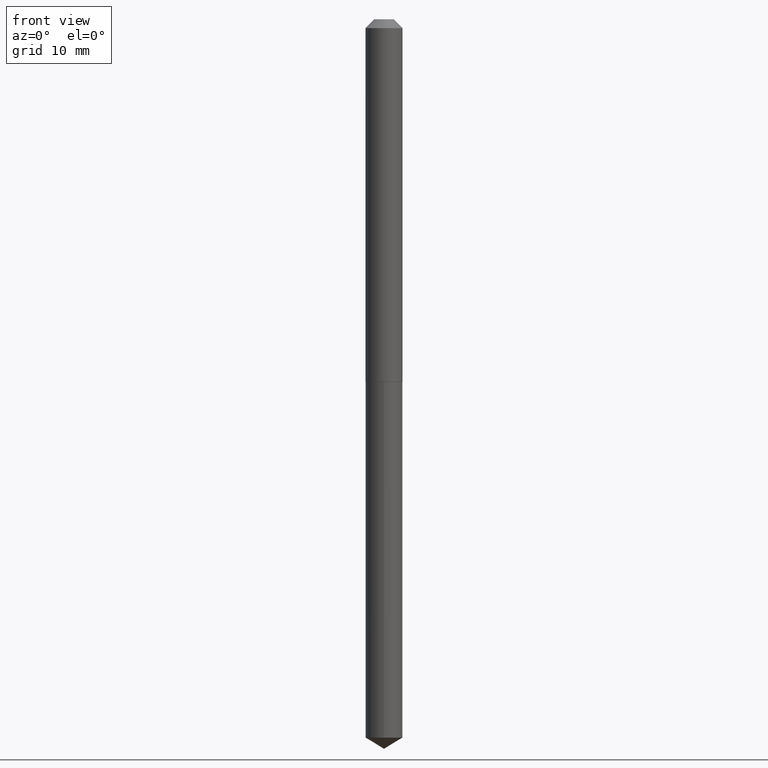
[diagram: clean part render]
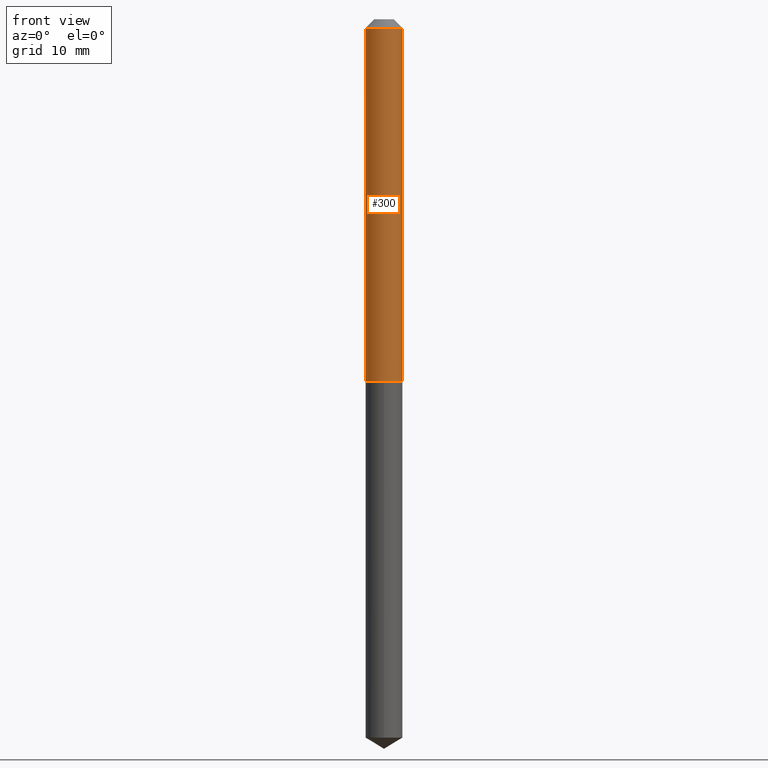
[diagram: same view with one face highlighted and labeled with its STEP entity id]
A machine part, front view. The second image highlights one B-rep face of the part: STEP entity #300.
In plain terms, the highlighted cylindrical surface (edge-blend (fillet) strip) has radius 1.6497 mm, axis along (-0, 0, 1).
Its self-contained STEP definition (entity closure, byte-faithful):
#10 = LINE ( 'NONE', #159, #65 ) ;
#13 = CARTESIAN_POINT ( 'NONE',  ( 0.000000000000000000, 0.000000000000000000, 0.000000000000000000 ) ) ;
#17 = CARTESIAN_POINT ( 'NONE',  ( 7.642090019328601786E-31, -1.091087918388490144E-16, -0.03125000000000020123 ) ) ;
#19 = EDGE_LOOP ( 'NONE', ( #212, #88, #215, #326 ) ) ;
#41 = DIRECTION ( 'NONE',  ( 1.000000000000000000, -6.982962677686265922E-15, 4.876176775795935793E-29 ) ) ;
#53 = VERTEX_POINT ( 'NONE', #64 ) ;
#64 = CARTESIAN_POINT ( 'NONE',  ( 0.06495000000000014651, -4.891914503853131360E-15, -1.271200000000000108 ) ) ;
#65 = VECTOR ( 'NONE', #104, 39.37007874015748143 ) ;
#66 = CARTESIAN_POINT ( 'NONE',  ( -0.06494999999999999385, -1.812242428011941536E-15, -0.03125000000000020123 ) ) ;
#74 = VERTEX_POINT ( 'NONE', #66 ) ;
#88 = ORIENTED_EDGE ( 'NONE', *, *, #207, .T. ) ;
#89 = EDGE_CURVE ( 'NONE', #182, #74, #10, .T. ) ;
#104 = DIRECTION ( 'NONE',  ( -2.445468806185136877E-29, 3.491481338843145188E-15, 1.000000000000000000 ) ) ;
#108 = FACE_OUTER_BOUND ( 'NONE', #19, .T. ) ;
#110 = CIRCLE ( 'NONE', #361, 0.06495000000000014651 ) ;
#111 = CYLINDRICAL_SURFACE ( 'NONE', #271, 0.06495000000000007712 ) ;
#157 = EDGE_CURVE ( 'NONE', #53, #302, #163, .T. ) ;
#159 = CARTESIAN_POINT ( 'NONE',  ( -0.06495000000000007712, 4.614975068761856187E-16, -3.194848341120565109E-30 ) ) ;
#163 = LINE ( 'NONE', #164, #354 ) ;
#164 = CARTESIAN_POINT ( 'NONE',  ( 0.06495000000000007712, -4.535434259157234891E-16, 3.167076815879463918E-30 ) ) ;
#168 = CARTESIAN_POINT ( 'NONE',  ( -0.06495000000000014651, -3.976873571061221069E-15, -1.271200000000000108 ) ) ;
#169 = DIRECTION ( 'NONE',  ( 1.000000000000000000, -6.982962677686267499E-15, 0.000000000000000000 ) ) ;
#182 = VERTEX_POINT ( 'NONE', #168 ) ;
#207 = EDGE_CURVE ( 'NONE', #182, #53, #110, .T. ) ;
#212 = ORIENTED_EDGE ( 'NONE', *, *, #89, .F. ) ;
#215 = ORIENTED_EDGE ( 'NONE', *, *, #157, .T. ) ;
#237 = CARTESIAN_POINT ( 'NONE',  ( 0.06494999999999999385, -5.626522177545718995E-16, -0.03125000000000020123 ) ) ;
#264 = EDGE_CURVE ( 'NONE', #74, #302, #378, .T. ) ;
#271 = AXIS2_PLACEMENT_3D ( 'NONE', #13, #350, #41 ) ;
#277 = AXIS2_PLACEMENT_3D ( 'NONE', #17, #293, #324 ) ;
#288 = DIRECTION ( 'NONE',  ( -2.445468806185136877E-29, 3.491481338843145188E-15, 1.000000000000000000 ) ) ;
#293 = DIRECTION ( 'NONE',  ( -2.445468806185136597E-29, 3.491481338843145583E-15, 1.000000000000000000 ) ) ;
#296 = CARTESIAN_POINT ( 'NONE',  ( 3.108679946422545888E-29, -4.438371077937407378E-15, -1.271200000000000108 ) ) ;
#299 = DIRECTION ( 'NONE',  ( -2.445468806185136597E-29, 3.491481338843145583E-15, 1.000000000000000000 ) ) ;
#300 = ADVANCED_FACE ( 'NONE', ( #108 ), #111, .T. ) ;
#302 = VERTEX_POINT ( 'NONE', #237 ) ;
#324 = DIRECTION ( 'NONE',  ( 1.000000000000000000, -6.982962677686265133E-15, 0.000000000000000000 ) ) ;
#326 = ORIENTED_EDGE ( 'NONE', *, *, #264, .F. ) ;
#350 = DIRECTION ( 'NONE',  ( -2.445468806185136597E-29, 3.491481338843145583E-15, 1.000000000000000000 ) ) ;
#354 = VECTOR ( 'NONE', #288, 39.37007874015748143 ) ;
#361 = AXIS2_PLACEMENT_3D ( 'NONE', #296, #299, #169 ) ;
#378 = CIRCLE ( 'NONE', #277, 0.06494999999999999385 ) ;